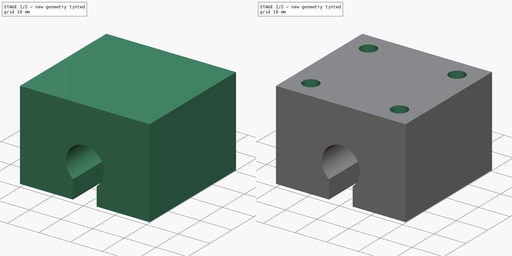
[diagram: build sequence overview — one tinted view per stage of 2, left to right]
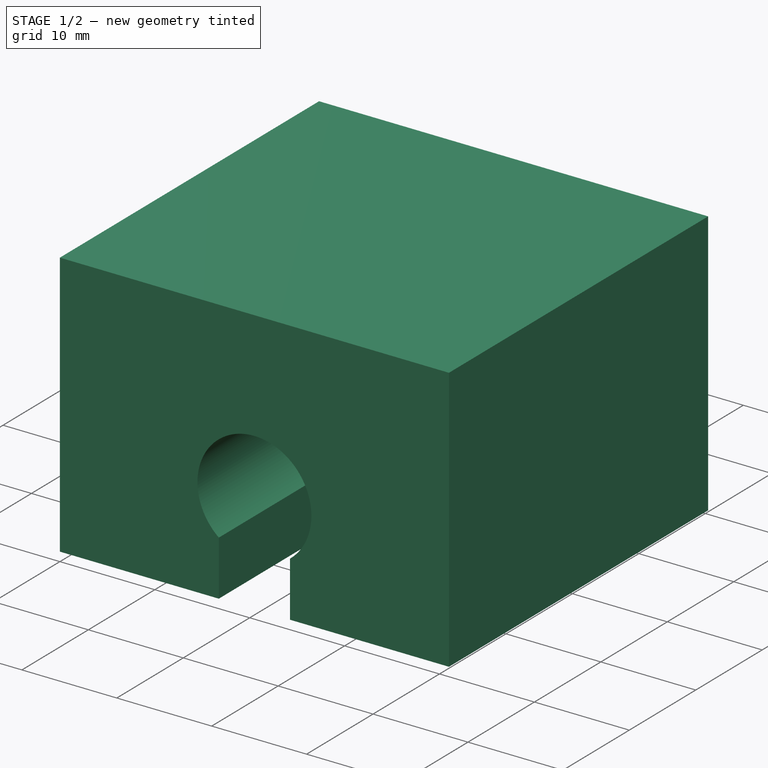
[diagram: stage 1 of 2 — iso view after this stage's code; geometry added in this stage tinted green]
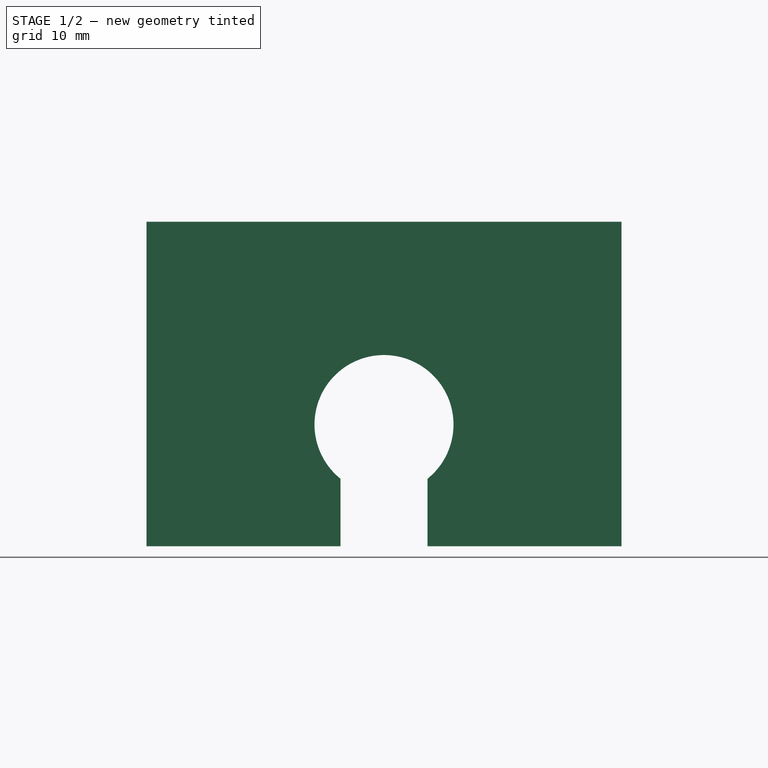
[diagram: stage 1 of 2 — front view after this stage's code; geometry added in this stage tinted green]
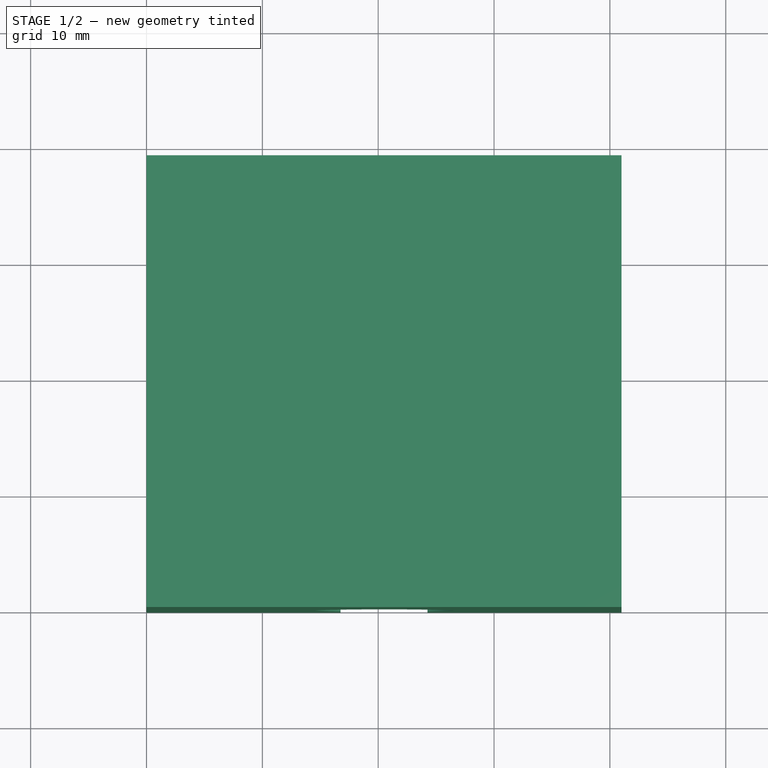
[diagram: stage 1 of 2 — top view after this stage's code; geometry added in this stage tinted green]
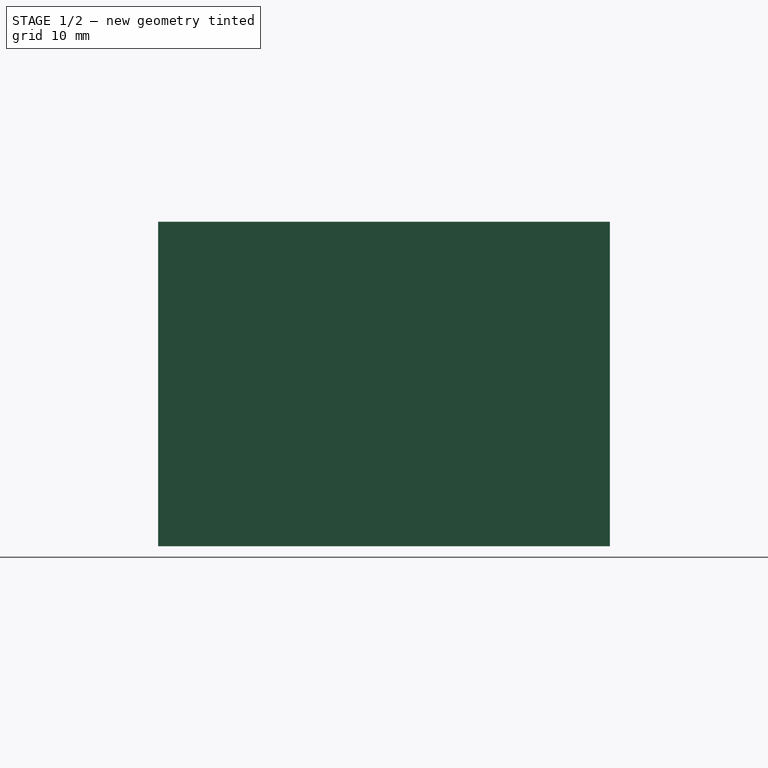
[diagram: stage 1 of 2 — right view after this stage's code; geometry added in this stage tinted green]
FCSTD DOCUMENT  (FreeCAD 0.14R3402 (Git))
Label: SBR12UU
License: CC-BY 3.0
LicenseURL: http://creativecommons.org/licenses/by/3.0/
objects: Sketcher::SketchObject×3, PartDesign::Pocket×2, PartDesign::Pad×1
note: 9 computed .brp shape members not serialized (recipe doc carries the construction recipe); baked Part::Feature solids carry a one-line shape summary decoded from their .brp

FEATURE [Sketcher::SketchObject] Sketch
  Placement = pos=(0,0,0) rot=(-1,0,0;4.71239rad)
  sketch-geometry (5):
    g0: LineSegment StartX=0 StartY=0 StartZ=0 EndX=41 EndY=0 EndZ=0
    g1: LineSegment StartX=41 StartY=0 StartZ=0 EndX=41 EndY=28 EndZ=0
    g2: LineSegment StartX=41 StartY=28 StartZ=0 EndX=0 EndY=28 EndZ=0
    g3: LineSegment StartX=0 StartY=28 StartZ=0 EndX=0 EndY=0 EndZ=0
    g4: LineSegment [constr] StartX=20.5 StartY=0 StartZ=0 EndX=20.5 EndY=28 EndZ=0
  constraints (15):
    c: Coincident(g0,g1)
    c: Coincident(g1,g2)
    c: Coincident(g2,g3)
    c: Coincident(g3,g0)
    c: Horizontal(g0)
    c: Horizontal(g2)
    c: Vertical(g1)
    c: Vertical(g3)
    c: Coincident(g0,g-1)
    c: DistanceY(g3) = -28
    c: DistanceX(g2) = -41
    c: PointOnObject(g4,g0)
    c: Vertical(g4)
    c: Symmetric(g0,g-1,g4)
    c: PointOnObject(g4,g2)
FEATURE [PartDesign::Pad] Pad
  Length = 39
  Length2 = 100
  Placement = pos=(0,0,0) rot=(-1,0,0;4.71239rad)
  Reversed = true
  Sketch = -> Sketch
  Type = 0
FEATURE [Sketcher::SketchObject] Sketch001
  Placement = pos=(0,0,0) rot=(1,0,0;1.5708rad)
  Support = -> Pad [Face5]
  sketch-geometry (9):
    g0: LineSegment [constr] StartX=0 StartY=0 StartZ=0 EndX=41 EndY=0 EndZ=0
    g1: LineSegment [constr] StartX=41 StartY=0 StartZ=0 EndX=41 EndY=28 EndZ=0
    g2: LineSegment [constr] StartX=41 StartY=28 StartZ=0 EndX=0 EndY=28 EndZ=0
    g3: LineSegment [constr] StartX=0 StartY=28 StartZ=0 EndX=0 EndY=0 EndZ=0
    g4: ArcOfCircle CenterX=20.5 CenterY=10.5 CenterZ=0 NormalX=0 NormalY=0 NormalZ=1 Radius=6 StartAngle=5.38752 EndAngle=10.3204
    g5: LineSegment [constr] StartX=20.5 StartY=0 StartZ=0 EndX=20.5 EndY=28 EndZ=0
    g6: LineSegment StartX=16.75 StartY=5.81625 StartZ=0 EndX=16.75 EndY=0 EndZ=0
    g7: LineSegment StartX=24.25 StartY=5.81625 StartZ=0 EndX=24.25 EndY=0 EndZ=0
    g8: LineSegment StartX=16.75 StartY=0 StartZ=0 EndX=24.25 EndY=0 EndZ=0
  constraints (28):
    c: Coincident(g0,g1)
    c: Coincident(g1,g2)
    c: Coincident(g2,g3)
    c: Coincident(g3,g0)
    c: Horizontal(g0)
    c: Horizontal(g2)
    c: Vertical(g1)
    c: Vertical(g3)
    c: Coincident(g0,g-1)
    c: Radius(g4) = 6
    c: DistanceY(g3) = -28
    c: DistanceX(g2) = -41
    c: PointOnObject(g5,g0)
    c: Vertical(g5)
    c: PointOnObject(g4,g5)
    c: Symmetric(g0,g-1,g5)
    c: DistanceY(g4,g1) = 17.5
    c: Coincident(g6,g4)
    c: PointOnObject(g6,g0)
    c: Vertical(g6)
    c: PointOnObject(g7,g0)
    c: Vertical(g7)
    c: Symmetric(g4,g7,g5)
    c: Coincident(g7,g4)
    c: DistanceX(g4,g4) = 7.5
    c: PointOnObject(g5,g2)
    c: Coincident(g8,g6)
    c: Coincident(g8,g7)
FEATURE [PartDesign::Pocket] Pocket
  Length = 5
  Placement = pos=(0,0,0) rot=(-1,0,0;4.71239rad)
  Sketch = -> Sketch001
  Type = 1
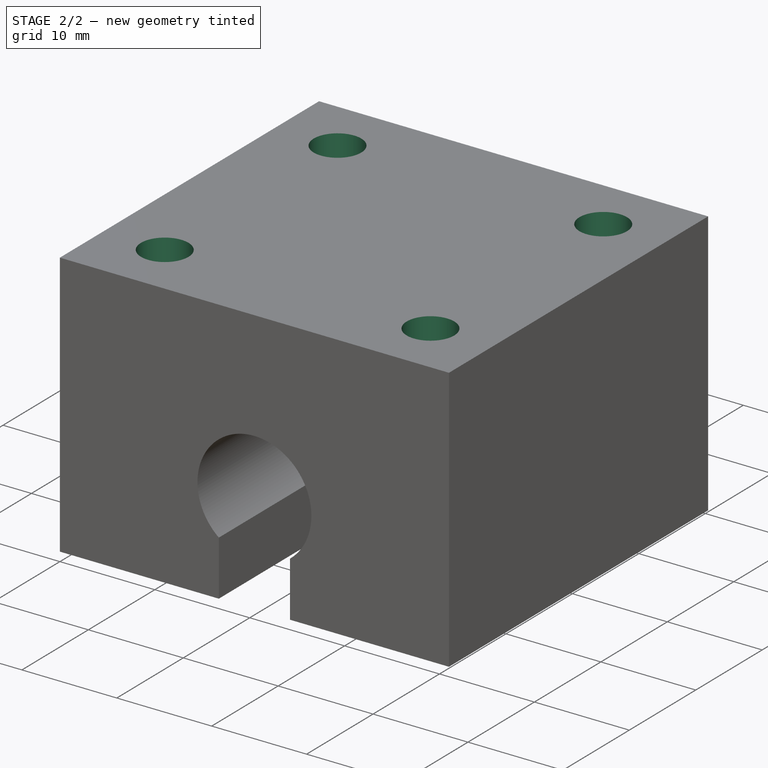
[diagram: stage 2 of 2 — iso view after this stage's code; geometry added in this stage tinted green]
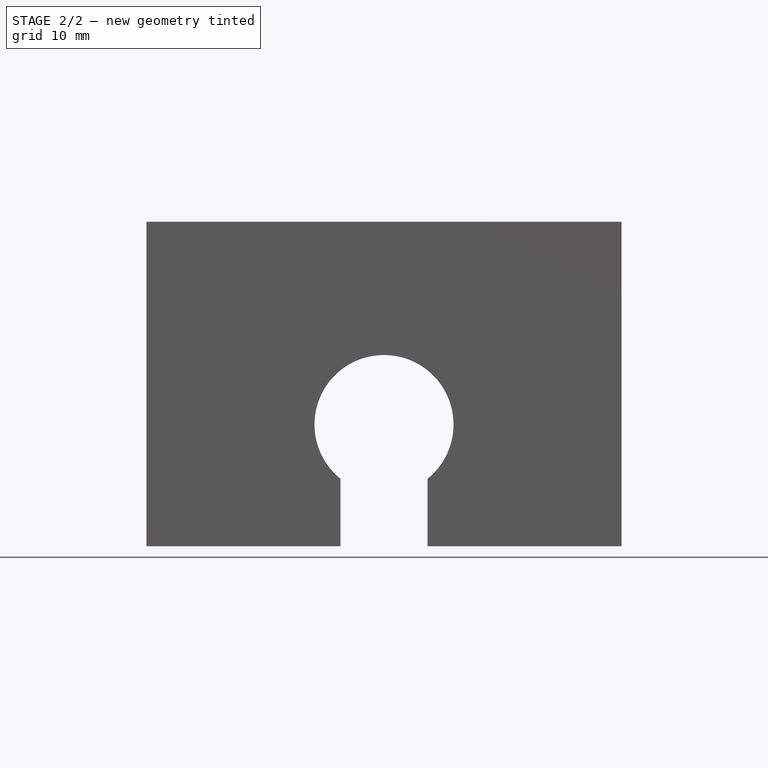
[diagram: stage 2 of 2 — front view after this stage's code; geometry added in this stage tinted green]
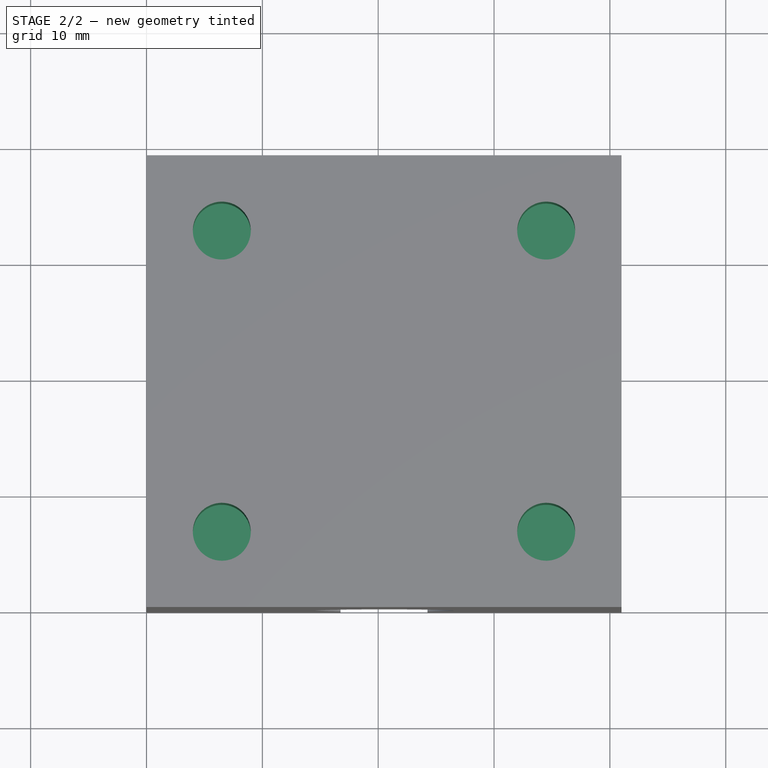
[diagram: stage 2 of 2 — top view after this stage's code; geometry added in this stage tinted green]
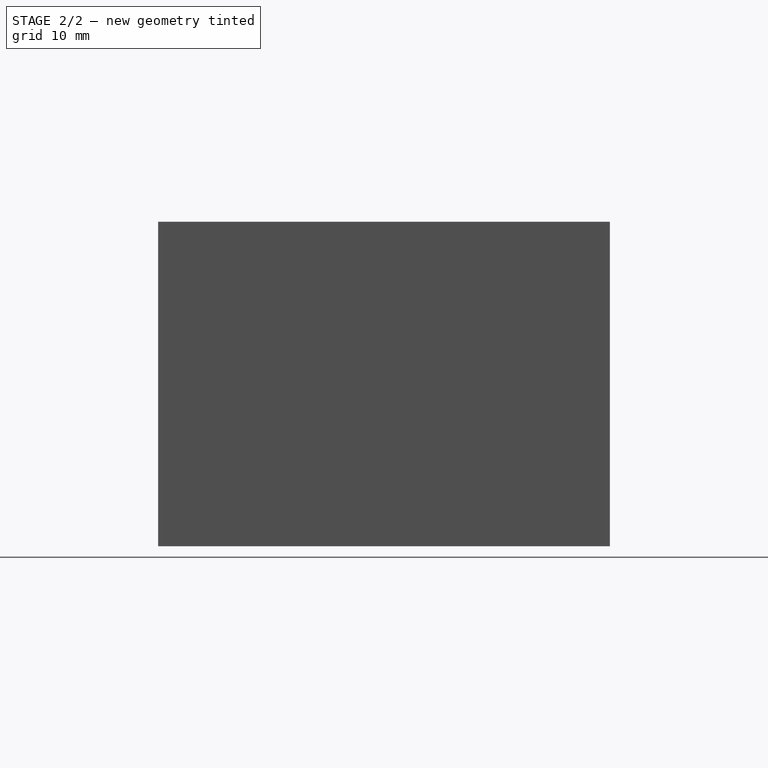
[diagram: stage 2 of 2 — right view after this stage's code; geometry added in this stage tinted green]
FEATURE [Sketcher::SketchObject] Sketch002
  Placement = pos=(0,0,28) rot=(0,0,1;3.14159rad)
  Support = -> Pocket [Face10]
  sketch-geometry (10):
    g0: LineSegment [constr] StartX=0 StartY=0 StartZ=0 EndX=-41 EndY=0 EndZ=0
    g1: LineSegment [constr] StartX=-41 StartY=0 StartZ=0 EndX=-41 EndY=-39 EndZ=0
    g2: LineSegment [constr] StartX=-41 StartY=-39 StartZ=0 EndX=0 EndY=-39 EndZ=0
    g3: LineSegment [constr] StartX=0 StartY=-39 StartZ=0 EndX=0 EndY=0 EndZ=0
    g4: LineSegment [constr] StartX=-41 StartY=-19.5 StartZ=0 EndX=0 EndY=-19.5 EndZ=0
    g5: Circle CenterX=-34.5 CenterY=-6.5 CenterZ=0 NormalX=0 NormalY=0 NormalZ=1 Radius=2.5
    g6: Circle CenterX=-6.5 CenterY=-6.5 CenterZ=0 NormalX=0 NormalY=0 NormalZ=1 Radius=2.5
    g7: Circle CenterX=-34.5 CenterY=-32.5 CenterZ=0 NormalX=0 NormalY=0 NormalZ=1 Radius=2.5
    g8: Circle CenterX=-6.5 CenterY=-32.5 CenterZ=0 NormalX=0 NormalY=0 NormalZ=1 Radius=2.5
    g9: LineSegment [constr] StartX=-20.5 StartY=0 StartZ=0 EndX=-20.5 EndY=-39 EndZ=0
  constraints (28):
    c: Coincident(g0,g1)
    c: Coincident(g1,g2)
    c: Coincident(g2,g3)
    c: Coincident(g3,g0)
    c: Horizontal(g2)
    c: Vertical(g1)
    c: Vertical(g3)
    c: Coincident(g0,g-1)
    c: DistanceX(g0) = -41
    c: DistanceY(g3) = 39
    c: PointOnObject(g4,g1)
    c: PointOnObject(g4,g3)
    c: Horizontal(g4)
    c: Symmetric(g2,g-1,g4)
    c: Symmetric(g7,g5,g4)
    c: Symmetric(g6,g8,g4)
    c: PointOnObject(g9,g0)
    c: PointOnObject(g9,g2)
    c: Vertical(g9)
    c: Symmetric(g2,g1,g9)
    c: Symmetric(g7,g8,g9)
    c: DistanceY(g5,g7) = -26
    c: Horizontal(g0)
    c: DistanceX(g7,g8) = 28
    c: Equal(g8,g6)
    c: Equal(g6,g5)
    c: Equal(g5,g7)
    c: Radius(g6) = 2.5
FEATURE [PartDesign::Pocket] Pocket001
  Length = 10
  Placement = pos=(0,0,0) rot=(-1,0,0;4.71239rad)
  Sketch = -> Sketch002
  Type = 0
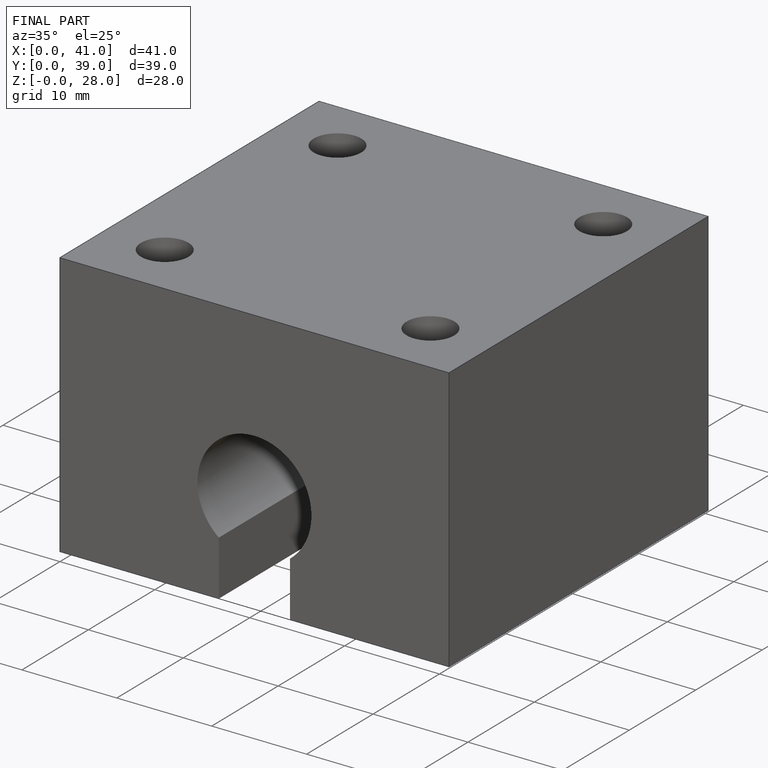
[diagram: finished part — iso view with bounding-box wireframe]
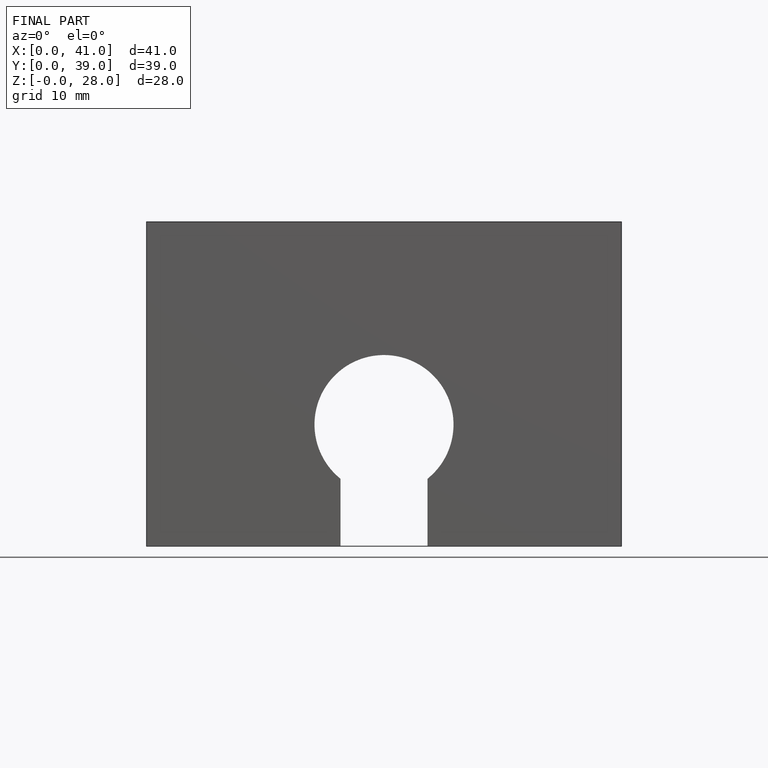
[diagram: finished part — front view with bounding-box wireframe]
